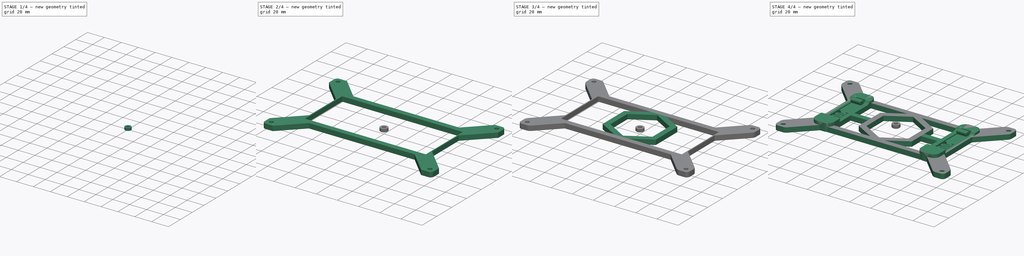
[diagram: build sequence overview — one tinted view per stage of 4, left to right]
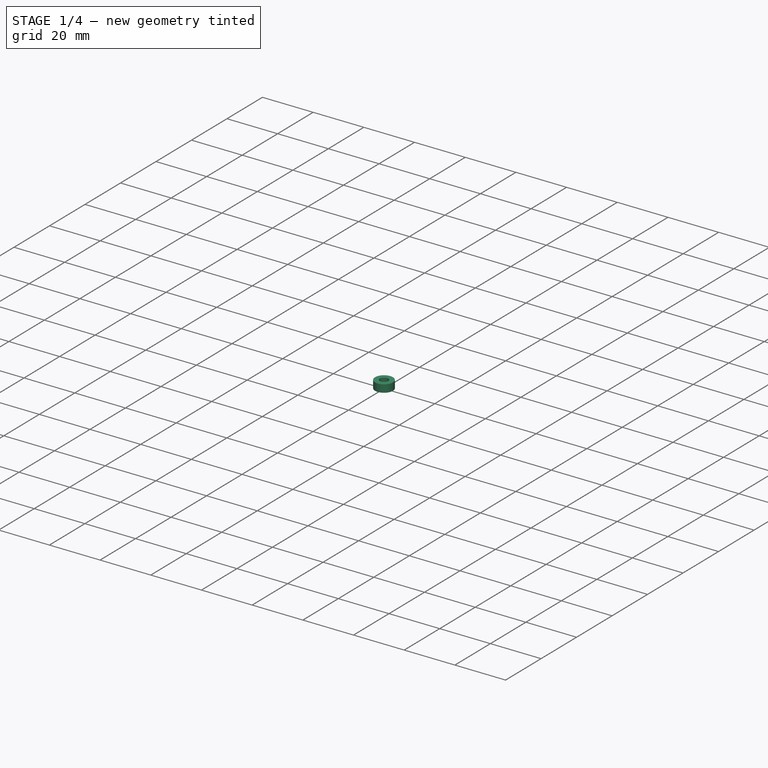
[diagram: stage 1 of 4 — iso view after this stage's code; geometry added in this stage tinted green]
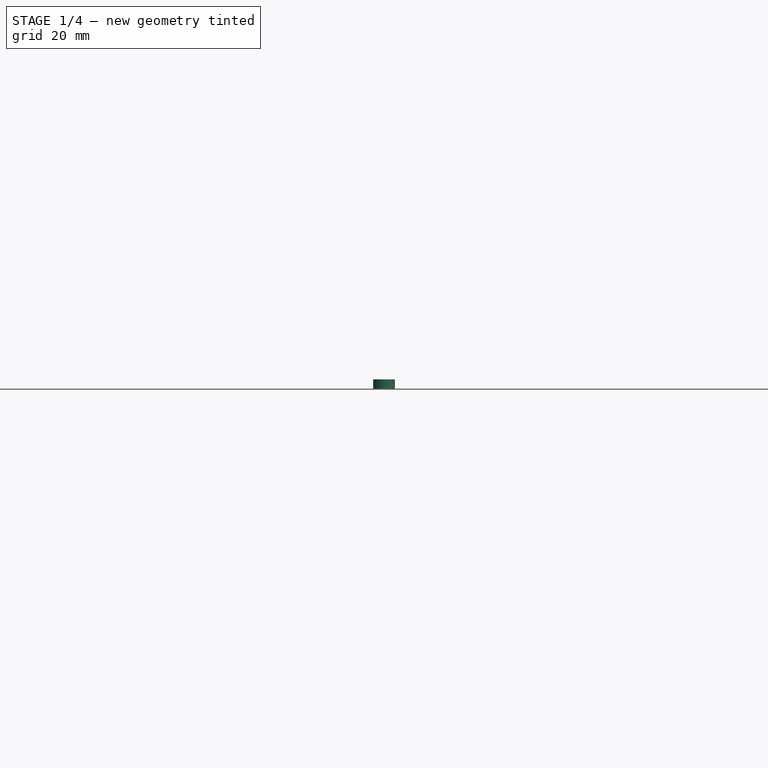
[diagram: stage 1 of 4 — front view after this stage's code; geometry added in this stage tinted green]
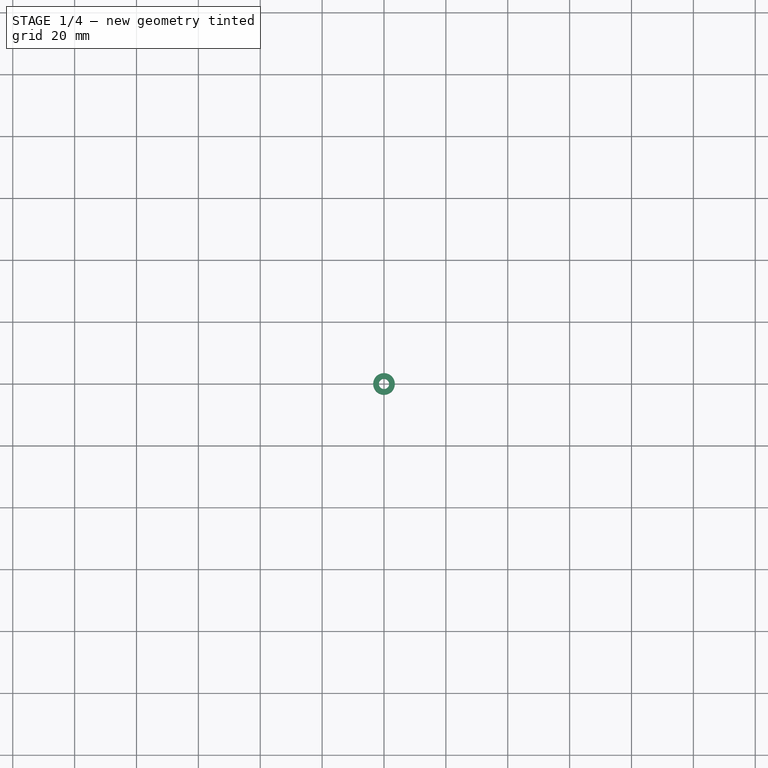
[diagram: stage 1 of 4 — top view after this stage's code; geometry added in this stage tinted green]
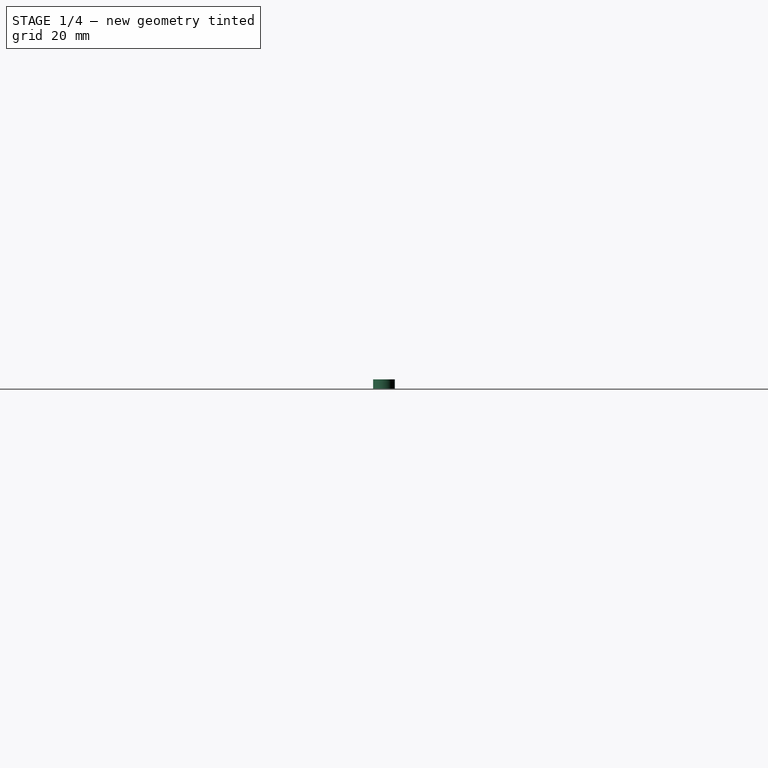
[diagram: stage 1 of 4 — right view after this stage's code; geometry added in this stage tinted green]
FCSTD DOCUMENT  (FreeCAD 0.19R24291 (Git))
Label: octopus-pro-din-mounter
License: Other
LicenseURL: GPL3
objects: Sketcher::SketchObject×3, PartDesign::Pad×3, Part::Feature×2, PartDesign::Fillet×2, Part::Chamfer×2, Part::Cylinder×2, PartDesign::Body×1, Part::MultiFuse×1, Part::Refine×1, Part::Cut×1
note: 23 computed .brp shape members not serialized (recipe doc carries the construction recipe); baked Part::Feature solids carry a one-line shape summary decoded from their .brp

FEATURE [Part::Cylinder] Cylinder
  Angle = 360
  AttacherType = Attacher::AttachEngine3D
  Height = 3
  Radius = 3.5
FEATURE [Part::Cylinder] Cylinder001
  Angle = 360
  AttacherType = Attacher::AttachEngine3D
  Height = 3
  Radius = 1.65
FEATURE [Part::Cut] Cut
  Base = -> Cylinder
  Tool = -> Cylinder001
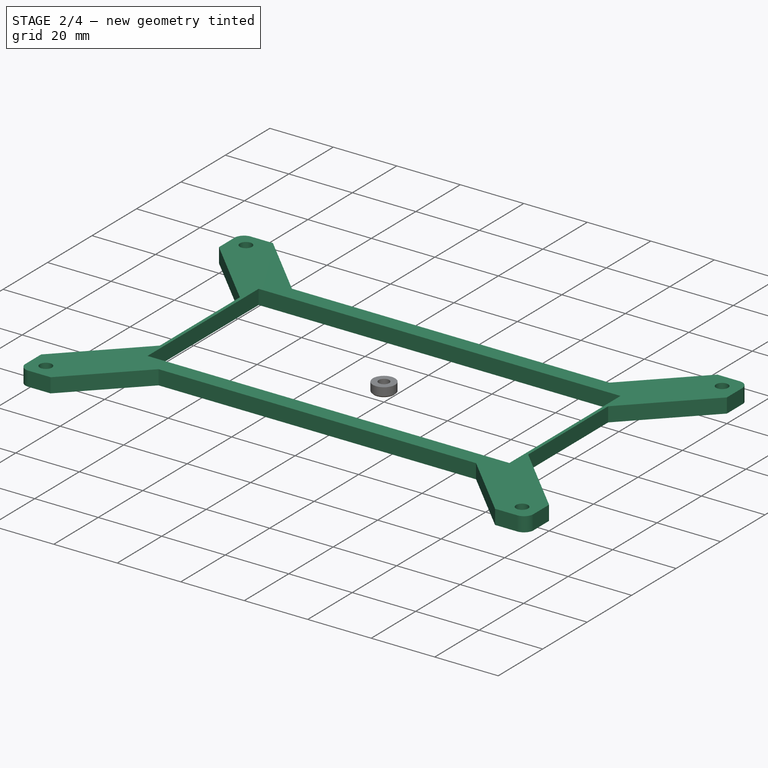
[diagram: stage 2 of 4 — iso view after this stage's code; geometry added in this stage tinted green]
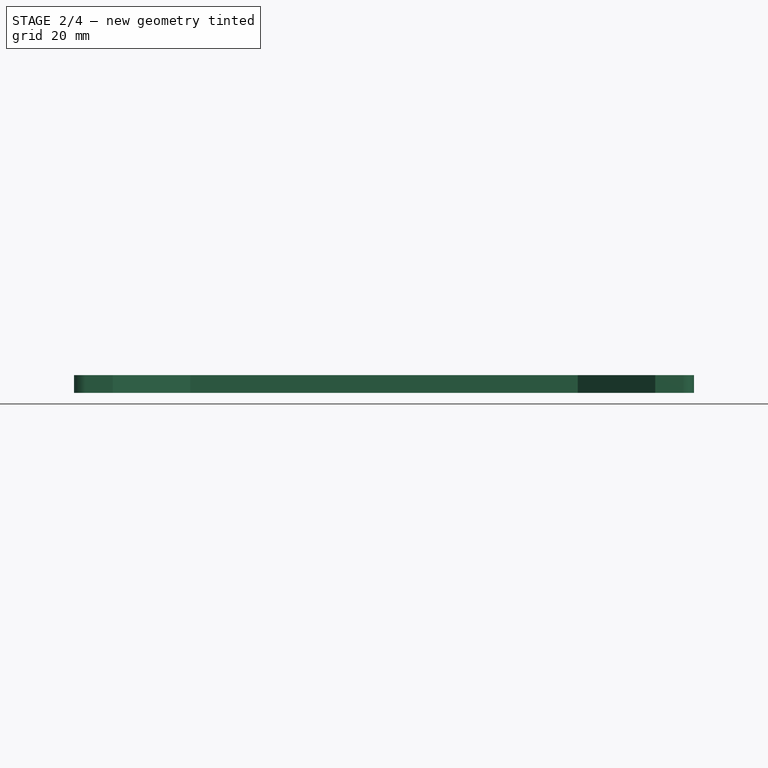
[diagram: stage 2 of 4 — front view after this stage's code; geometry added in this stage tinted green]
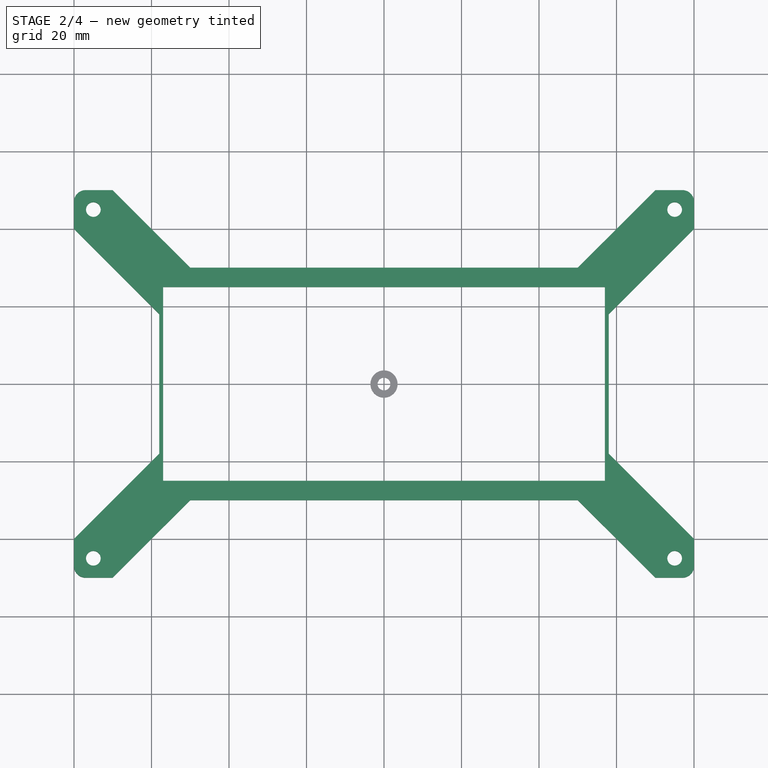
[diagram: stage 2 of 4 — top view after this stage's code; geometry added in this stage tinted green]
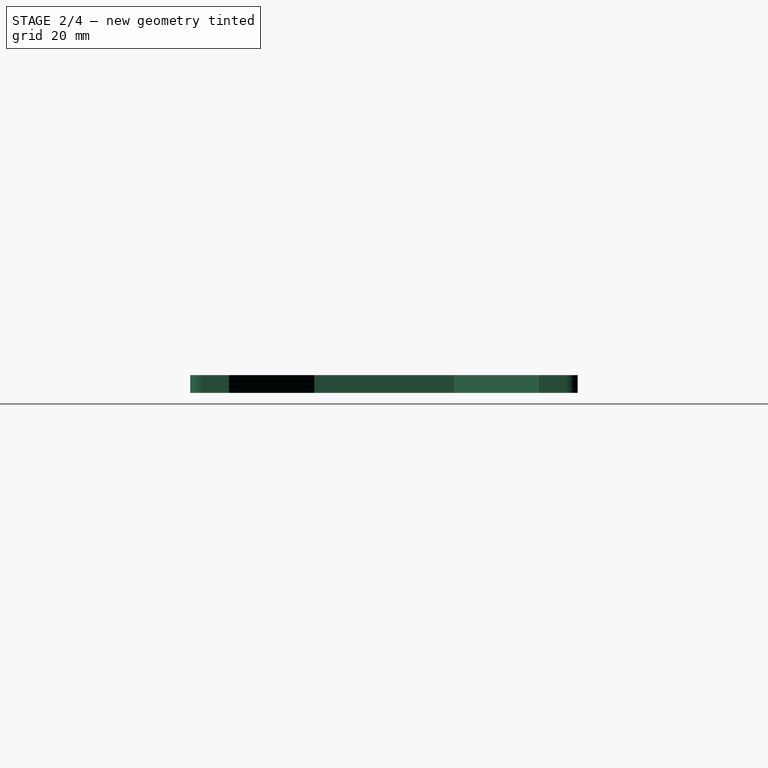
[diagram: stage 2 of 4 — right view after this stage's code; geometry added in this stage tinted green]
FEATURE [Part::Feature] Body004005  label="base004"
  Placement = pos=(-50,0,4.6) rot=(0,0,1;0rad)
  shape: bbox 18 x 63.6 x 7.6 mm, 165 faces (baked)
FEATURE [Sketcher::SketchObject] Sketch
  FullyConstrained = false
  MapMode = 5
  Support = -> [XY_Plane]
  sketch-geometry (32):
    g0: Circle CenterX=-75 CenterY=45 CenterZ=0 NormalX=0 NormalY=0 NormalZ=1 AngleXU=0 Radius=1.9
    g1: Circle CenterX=75 CenterY=45 CenterZ=0 NormalX=0 NormalY=0 NormalZ=1 AngleXU=0 Radius=1.9
    g2: Circle CenterX=-75 CenterY=-45 CenterZ=0 NormalX=0 NormalY=0 NormalZ=1 AngleXU=0 Radius=1.9
    g3: Circle CenterX=75 CenterY=-45 CenterZ=0 NormalX=0 NormalY=0 NormalZ=1 AngleXU=0 Radius=1.9
    g4: LineSegment StartX=-70 StartY=50 StartZ=0 EndX=-80 EndY=50 EndZ=0
    g5: LineSegment StartX=-80 StartY=50 StartZ=0 EndX=-80 EndY=40 EndZ=0
    g6: LineSegment StartX=-80 StartY=-40 StartZ=0 EndX=-80 EndY=-50 EndZ=0
    g7: LineSegment StartX=-80 StartY=-50 StartZ=0 EndX=-70 EndY=-50 EndZ=0
    g8: LineSegment StartX=70 StartY=-50 StartZ=0 EndX=80 EndY=-50 EndZ=0
    g9: LineSegment StartX=80 StartY=-50 StartZ=0 EndX=80 EndY=-40 EndZ=0
    g10: LineSegment StartX=70 StartY=50 StartZ=0 EndX=80 EndY=50 EndZ=0
    g11: LineSegment StartX=80 StartY=50 StartZ=0 EndX=80 EndY=40 EndZ=0
    g12: LineSegment StartX=-80 StartY=40 StartZ=0 EndX=-60 EndY=20 EndZ=0
    g13: LineSegment StartX=-70 StartY=50 StartZ=0 EndX=-50 EndY=30 EndZ=0
    g14: LineSegment StartX=-80 StartY=-40 StartZ=0 EndX=-60 EndY=-20 EndZ=0
    g15: LineSegment StartX=-70 StartY=-50 StartZ=0 EndX=-50 EndY=-30 EndZ=0
    g16: LineSegment StartX=70 StartY=50 StartZ=0 EndX=50 EndY=30 EndZ=0
    g17: LineSegment StartX=80 StartY=40 StartZ=0 EndX=60 EndY=20 EndZ=0
    g18: LineSegment StartX=70 StartY=-50 StartZ=0 EndX=50 EndY=-30 EndZ=0
    g19: LineSegment StartX=80 StartY=-40 StartZ=0 EndX=60 EndY=-20 EndZ=0
    g20: LineSegment StartX=-50 StartY=30 StartZ=0 EndX=50 EndY=30 EndZ=0
    g21: LineSegment StartX=-50 StartY=-30 StartZ=0 EndX=50 EndY=-30 EndZ=0
    g22: LineSegment StartX=-60 StartY=20 StartZ=0 EndX=-58 EndY=18 EndZ=0
    g23: LineSegment StartX=-58 StartY=-18 StartZ=0 EndX=-60 EndY=-20 EndZ=0
    g24: LineSegment StartX=60 StartY=20 StartZ=0 EndX=58 EndY=18 EndZ=0
    g25: LineSegment StartX=60 StartY=-20 StartZ=0 EndX=58 EndY=-18 EndZ=0
    g26: LineSegment StartX=58 StartY=-18 StartZ=0 EndX=58 EndY=18 EndZ=0
    g27: LineSegment StartX=-58 StartY=18 StartZ=0 EndX=-58 EndY=-18 EndZ=0
    g28: LineSegment StartX=-57 StartY=25 StartZ=0 EndX=57 EndY=25 EndZ=0
    g29: LineSegment StartX=-57 StartY=-25 StartZ=0 EndX=57 EndY=-25 EndZ=0
    g30: LineSegment StartX=57 StartY=25 StartZ=0 EndX=57 EndY=-25 EndZ=0
    g31: LineSegment StartX=-57 StartY=25 StartZ=0 EndX=-57 EndY=-25 EndZ=0
  constraints (56):
    c: Radius(g0) = 1.9
    c: Radius(g2) = 1.9
    c: Radius(g3) = 1.9
    c: Radius(g1) = 1.9
    c: DistanceY(g0,g1) = 0
    c: DistanceY(g3,g2) = 0
    c: DistanceY(g2,g0) = 90
    c: DistanceX(g0,g2) = 0
    c: DistanceX(g1,g3) = 0
    c: DistanceX(g0,g1) = 150
    c: DistanceY(g-1,g0) = 45
    c: DistanceX(g0,g-1) = 75
    c: Horizontal(g4)
    c: Coincident(g4,g5)
    c: Vertical(g5)
    c: Vertical(g6)
    c: Coincident(g6,g7)
    c: Horizontal(g7)
    c: Horizontal(g8)
    c: Coincident(g8,g9)
    c: Vertical(g9)
    c: Horizontal(g10)
    c: Coincident(g10,g11)
    c: Vertical(g11)
    c: Coincident(g5,g12)
    c: Coincident(g4,g13)
    c: Coincident(g6,g14)
    c: Coincident(g7,g15)
    c: Coincident(g10,g16)
    c: Coincident(g11,g17)
    c: Coincident(g8,g18)
    c: Coincident(g9,g19)
    c: Coincident(g13,g20)
    c: Coincident(g20,g16)
    c: Horizontal(g20)
    c: Coincident(g15,g21)
    c: Coincident(g21,g18)
    c: Horizontal(g21)
    c: Coincident(g22,g12)
    c: Coincident(g23,g14)
    c: Coincident(g24,g17)
    c: Coincident(g25,g19)
    c: Coincident(g26,g25)
    c: Coincident(g26,g24)
    c: Vertical(g26)
    c: Coincident(g27,g22)
    c: Coincident(g27,g23)
    c: Vertical(g27)
    c: Horizontal(g28)
    c: Horizontal(g29)
    c: Coincident(g30,g28)
    c: Coincident(g30,g29)
    c: Vertical(g30)
    c: Coincident(g31,g28)
    c: Coincident(g31,g29)
    c: Vertical(g31)
FEATURE [Part::Feature] Body004006  label="base005"
  Placement = pos=(50,0,4.6) rot=(0,0,1;0rad)
  shape: bbox 18 x 63.6 x 7.6 mm, 165 faces (baked)
FEATURE [PartDesign::Pad] Pad
  Direction = (1,1,1)
  Length = 4.6
  Length2 = 100
  Profile = -> Sketch
  Type = 0
FEATURE [PartDesign::Fillet] Fillet
  Base = -> Pad [Edge26,Edge5,Edge62,Edge41]
  BaseFeature = -> Pad
  Radius = 3
  SupportTransform = false
FEATURE [Part::Chamfer] Chamfer001
  Base = -> Cut
  Edges = 2 edges r=0.4: [Edge3,Edge5]
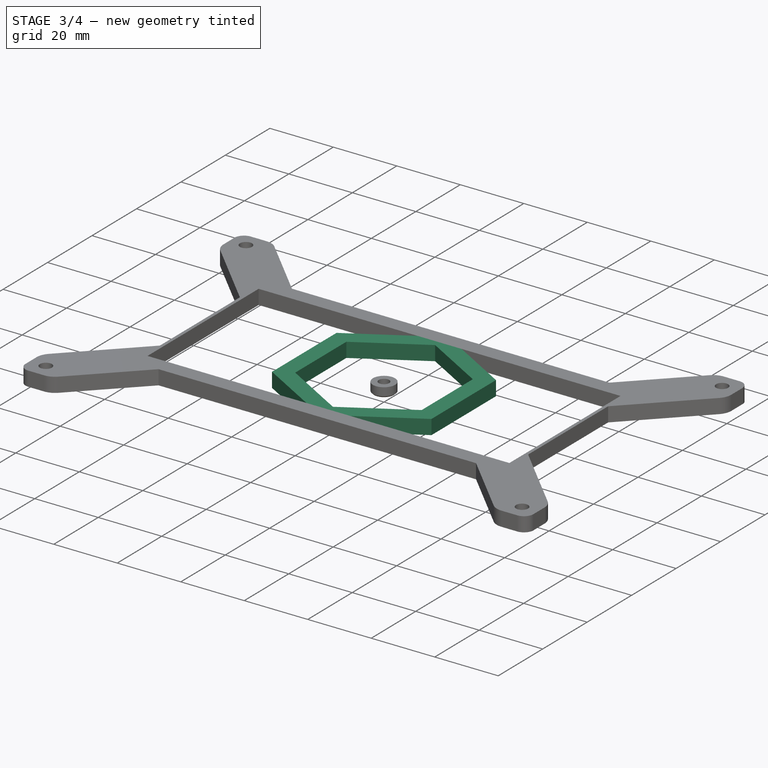
[diagram: stage 3 of 4 — iso view after this stage's code; geometry added in this stage tinted green]
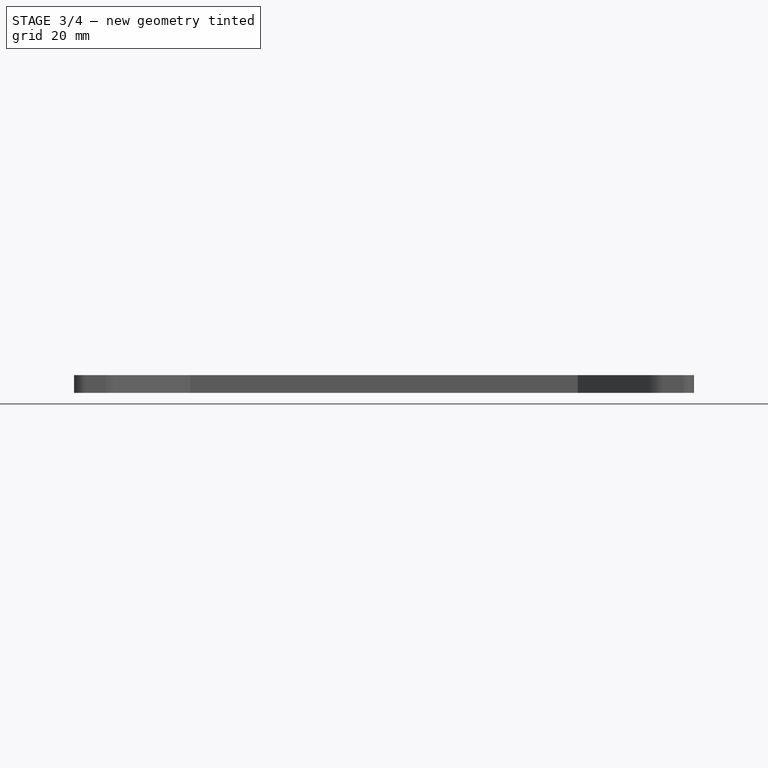
[diagram: stage 3 of 4 — front view after this stage's code; geometry added in this stage tinted green]
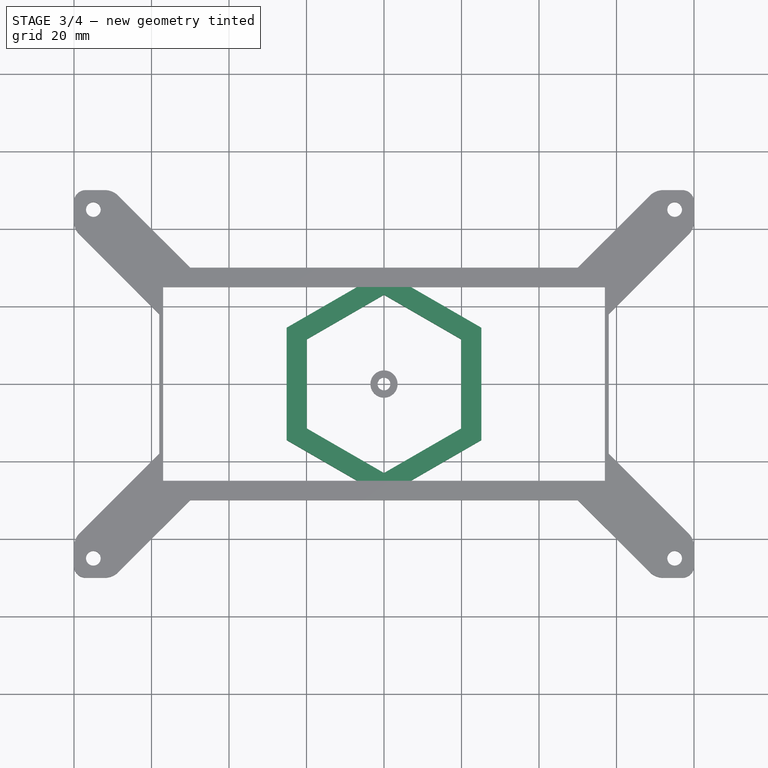
[diagram: stage 3 of 4 — top view after this stage's code; geometry added in this stage tinted green]
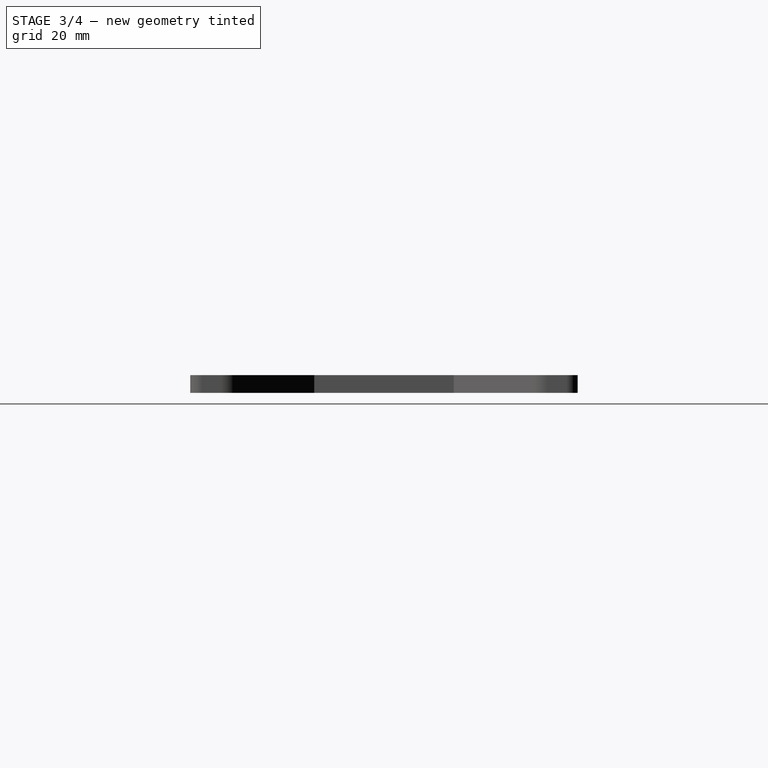
[diagram: stage 3 of 4 — right view after this stage's code; geometry added in this stage tinted green]
FEATURE [PartDesign::Fillet] Fillet001
  Base = -> Fillet [Edge77,Edge3,Edge93,Edge87,Edge99,Edge96,Edge86,Edge80]
  BaseFeature = -> Fillet
  Radius = 5
  SupportTransform = false
FEATURE [Sketcher::SketchObject] Sketch001
  FullyConstrained = false
  MapMode = 5
  Placement = pos=(0,0,4.6) rot=(0,0,1;0rad)
  Support = -> [Fillet001]
  sketch-geometry (14):
    g0: LineSegment StartX=0 StartY=29 StartZ=0 EndX=-25.1147 EndY=14.5 EndZ=0
    g1: LineSegment StartX=-25.1147 StartY=14.5 StartZ=0 EndX=-25.1147 EndY=-14.5 EndZ=0
    g2: LineSegment StartX=-25.1147 StartY=-14.5 StartZ=0 EndX=-3.6e-15 EndY=-29 EndZ=0
    g3: LineSegment StartX=-3.6e-15 StartY=-29 StartZ=0 EndX=25.1147 EndY=-14.5 EndZ=0
    g4: LineSegment StartX=25.1147 StartY=-14.5 StartZ=0 EndX=25.1147 EndY=14.5 EndZ=0
    g5: LineSegment StartX=25.1147 StartY=14.5 StartZ=0 EndX=0 EndY=29 EndZ=0
    g6: Circle CenterX=0 CenterY=0 CenterZ=0 NormalX=0 NormalY=0 NormalZ=1 AngleXU=0 Radius=29
    g7: LineSegment StartX=0 StartY=23 StartZ=0 EndX=-19.9186 EndY=11.5 EndZ=0
    g8: LineSegment StartX=-19.9186 StartY=11.5 StartZ=0 EndX=-19.9186 EndY=-11.5 EndZ=0
    g9: LineSegment StartX=-19.9186 StartY=-11.5 StartZ=0 EndX=-3.6e-15 EndY=-23 EndZ=0
    g10: LineSegment StartX=-3.6e-15 StartY=-23 StartZ=0 EndX=19.9186 EndY=-11.5 EndZ=0
    g11: LineSegment StartX=19.9186 StartY=-11.5 StartZ=0 EndX=19.9186 EndY=11.5 EndZ=0
    g12: LineSegment StartX=19.9186 StartY=11.5 StartZ=0 EndX=0 EndY=23 EndZ=0
    g13: Circle CenterX=0 CenterY=0 CenterZ=0 NormalX=0 NormalY=0 NormalZ=1 AngleXU=0 Radius=23
  constraints (30):
    c: Coincident(g0,g1)
    c: Coincident(g1,g2)
    c: Coincident(g2,g3)
    c: Coincident(g3,g4)
    c: Coincident(g4,g5)
    c: Coincident(g5,g0)
    c: Equal(g0, g1-g5) x5
    c: PointOnObject(g0,g6)
    c: PointOnObject(g1,g6)
    c: PointOnObject(g2,g6)
    c: PointOnObject(g3,g6)
    c: PointOnObject(g4,g6)
    c: PointOnObject(g5,g6)
    c: Coincident(g6,g-1)
    c: PointOnObject(g5,g-2)
    c: Coincident(g7,g8)
    c: Coincident(g8,g9)
    c: Coincident(g9,g10)
    c: Coincident(g10,g11)
    c: Coincident(g11,g12)
    c: Coincident(g12,g7)
    c: Equal(g7, g8-g12) x5
    c: PointOnObject(g7,g13)
    c: PointOnObject(g8,g13)
    c: PointOnObject(g9,g13)
    c: PointOnObject(g10,g13)
    c: PointOnObject(g11,g13)
    c: PointOnObject(g12,g13)
    c: Coincident(g13,g-1)
    c: PointOnObject(g12,g-2)
FEATURE [PartDesign::Pad] Pad001
  BaseFeature = -> Fillet001
  Direction = (1,1,1)
  Length = 4.6
  Length2 = 100
  Profile = -> Sketch001
  Reversed = true
  Type = 0
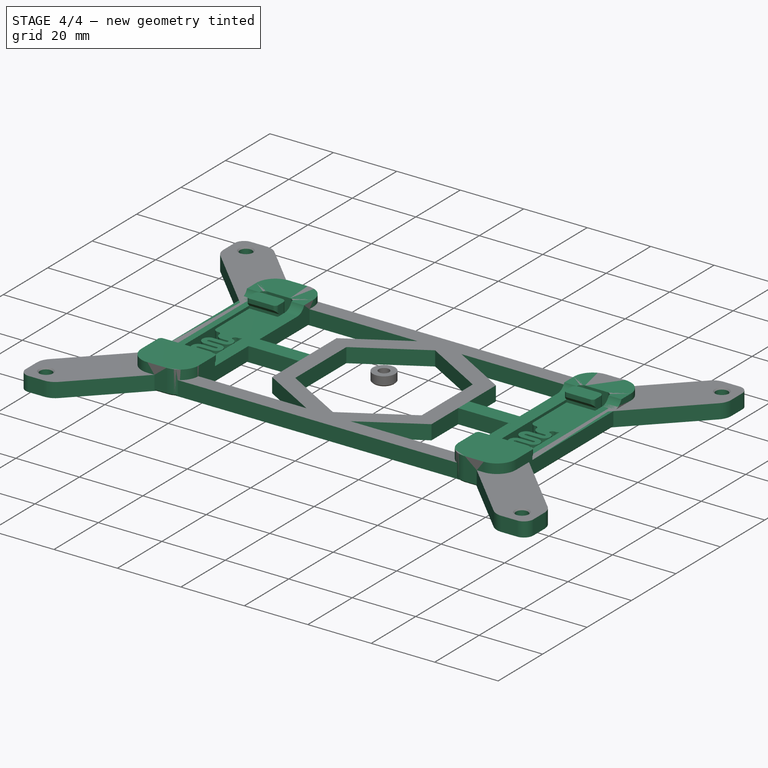
[diagram: stage 4 of 4 — iso view after this stage's code; geometry added in this stage tinted green]
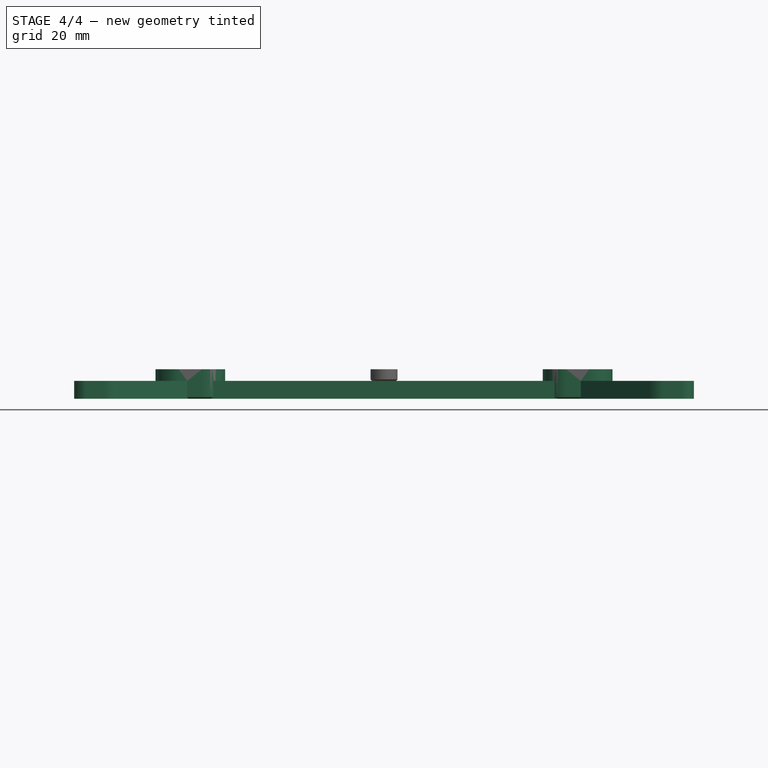
[diagram: stage 4 of 4 — front view after this stage's code; geometry added in this stage tinted green]
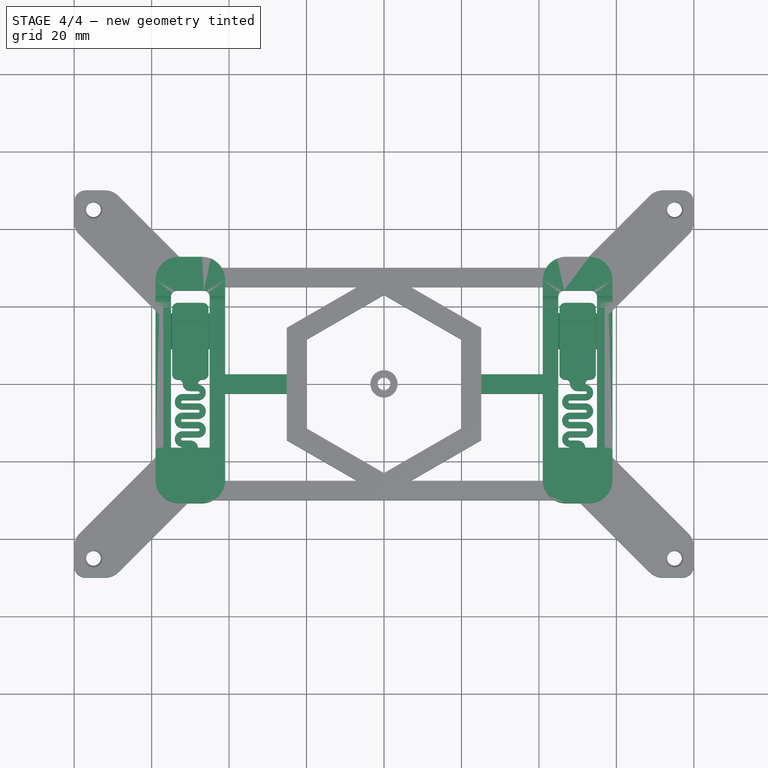
[diagram: stage 4 of 4 — top view after this stage's code; geometry added in this stage tinted green]
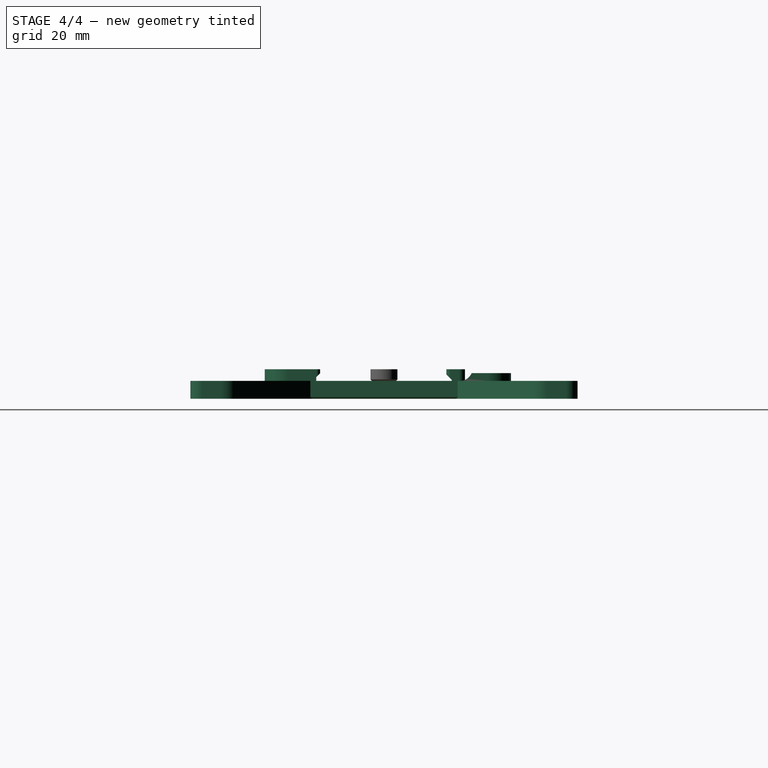
[diagram: stage 4 of 4 — right view after this stage's code; geometry added in this stage tinted green]
FEATURE [Sketcher::SketchObject] Sketch002
  FullyConstrained = false
  MapMode = 5
  Placement = pos=(0,0,4.6) rot=(0,0,1;0rad)
  Support = -> [Pad001]
  sketch-geometry (8):
    g0: LineSegment StartX=-42 StartY=2.5 StartZ=0 EndX=-24 EndY=2.5 EndZ=0
    g1: LineSegment StartX=-24 StartY=2.5 StartZ=0 EndX=-24 EndY=-2.5 EndZ=0
    g2: LineSegment StartX=-24 StartY=-2.5 StartZ=0 EndX=-42 EndY=-2.5 EndZ=0
    g3: LineSegment StartX=-42 StartY=-2.5 StartZ=0 EndX=-42 EndY=2.5 EndZ=0
    g4: LineSegment StartX=24 StartY=2.5 StartZ=0 EndX=42 EndY=2.5 EndZ=0
    g5: LineSegment StartX=42 StartY=2.5 StartZ=0 EndX=42 EndY=-2.5 EndZ=0
    g6: LineSegment StartX=42 StartY=-2.5 StartZ=0 EndX=24 EndY=-2.5 EndZ=0
    g7: LineSegment StartX=24 StartY=-2.5 StartZ=0 EndX=24 EndY=2.5 EndZ=0
  constraints (16):
    c: Coincident(g0,g1)
    c: Coincident(g1,g2)
    c: Coincident(g2,g3)
    c: Coincident(g3,g0)
    c: Horizontal(g0)
    c: Horizontal(g2)
    c: Vertical(g1)
    c: Vertical(g3)
    c: Coincident(g4,g5)
    c: Coincident(g5,g6)
    c: Coincident(g6,g7)
    c: Coincident(g7,g4)
    c: Horizontal(g4)
    c: Horizontal(g6)
    c: Vertical(g5)
    c: Vertical(g7)
FEATURE [PartDesign::Pad] Pad002
  BaseFeature = -> Pad001
  Direction = (1,1,1)
  Length = 4.6
  Length2 = 100
  Profile = -> Sketch002
  Reversed = true
  Type = 0
FEATURE [PartDesign::Body] Body
  Group = -> [Sketch,Pad,Fillet,Fillet001,Sketch001,Pad001,Sketch002,Pad002]
  Origin = -> Origin
  Tip = -> Pad002
FEATURE [Part::MultiFuse] Fusion  label="mount-plate-base"
  Shapes = -> [Body004006,Body,Body004005]
FEATURE [Part::Refine] Fusion001  label="mount-plate-base001"
  Source = -> Fusion
FEATURE [Part::Chamfer] Chamfer
  Base = -> Fusion001
  Edges = 4 edges r=0.4: [Edge391,Edge632,Edge783,Edge841]
  Placement = pos=(0,0,0) rot=(1,0,0;3.14159rad)
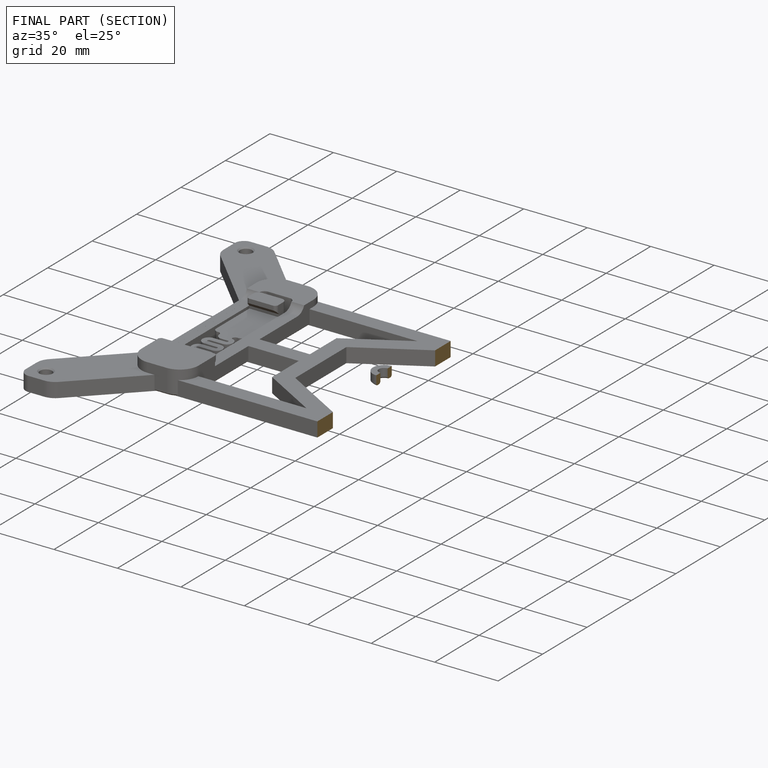
[diagram: finished part — half-section view (interior)]
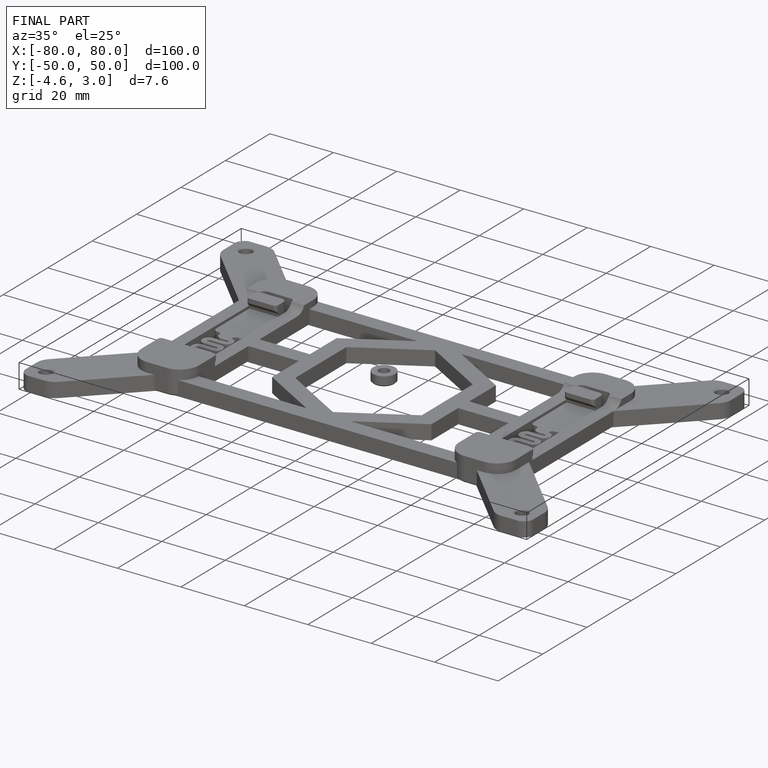
[diagram: finished part — iso view with bounding-box wireframe]
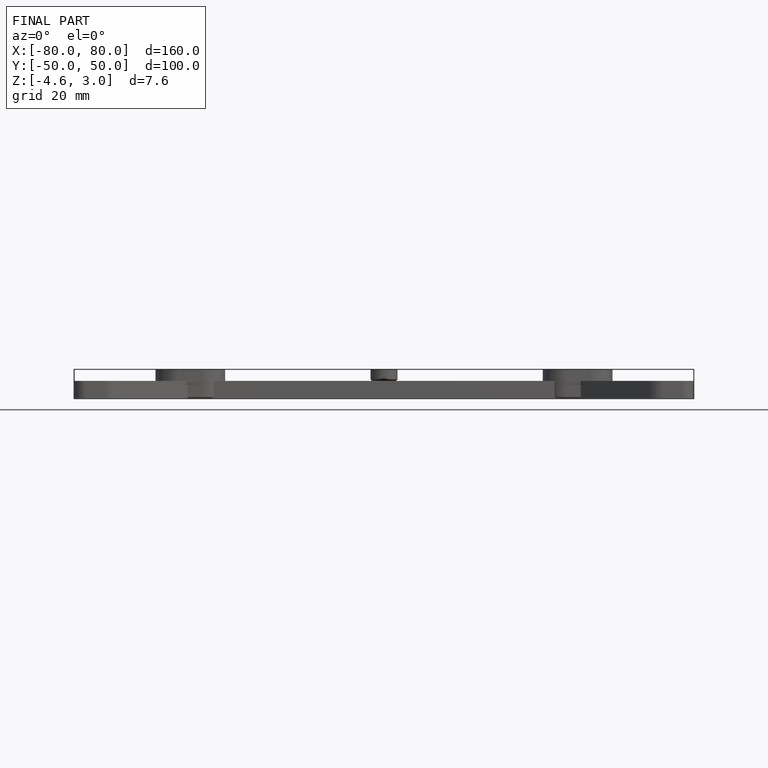
[diagram: finished part — front view with bounding-box wireframe]
